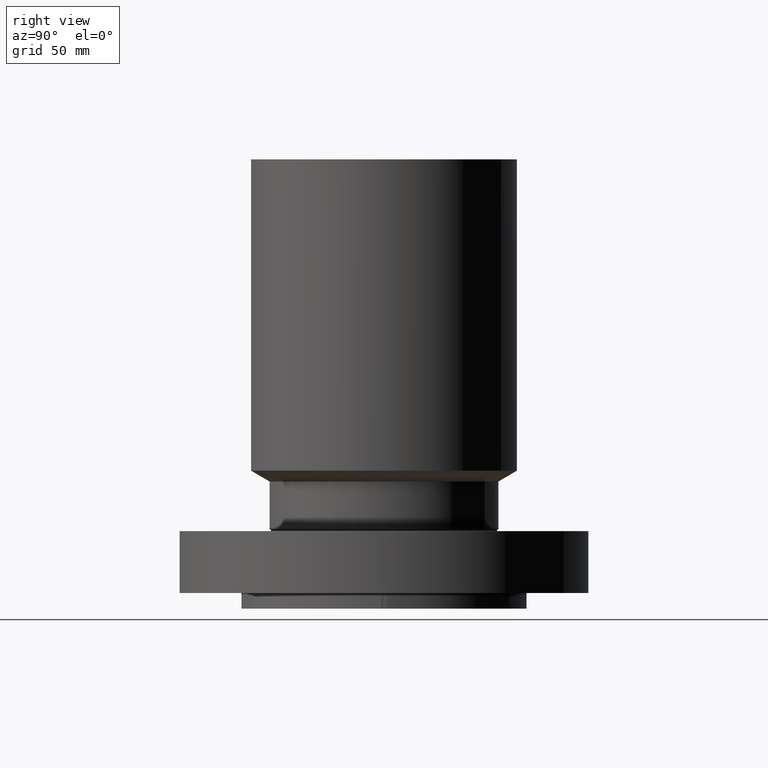
[diagram: clean part render]
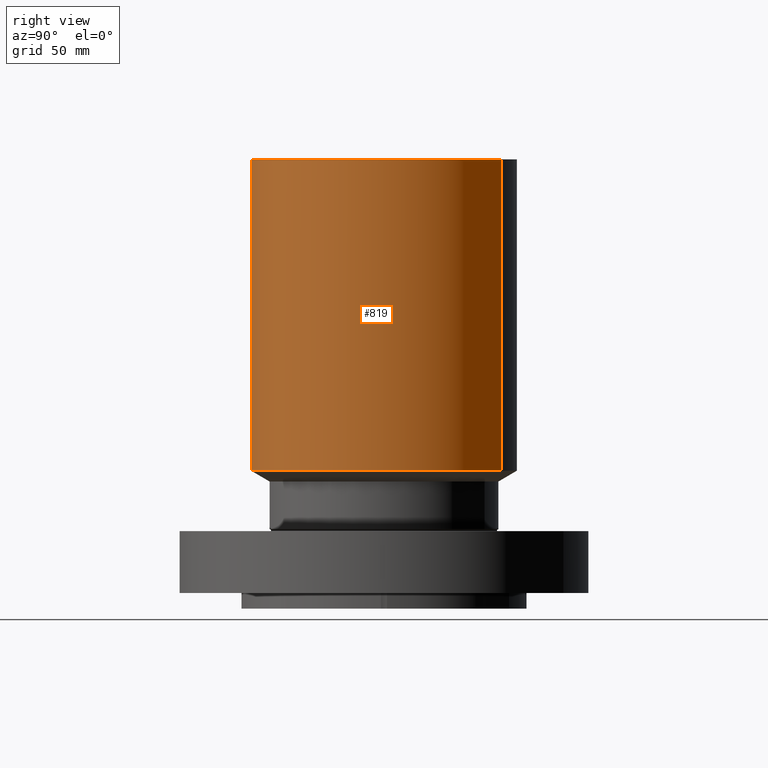
[diagram: same view with one face highlighted and labeled with its STEP entity id]
A machine part, right view. The second image highlights one B-rep face of the part: STEP entity #819.
In plain terms, the highlighted cylindrical surface (partial cylindrical patch) has radius 68.326 mm, axis along (0, 0, -1).
Its self-contained STEP definition (entity closure, byte-faithful):
#760=AXIS2_PLACEMENT_3D('Circle Axis2P3D',#758,#759,$) ;
#792=AXIS2_PLACEMENT_3D('Cylinder Axis2P3D',#789,#790,#791) ;
#803=AXIS2_PLACEMENT_3D('Circle Axis2P3D',#801,#802,$) ;
#755=CARTESIAN_POINT('Vertex',(1.28965469885,2.36069709149,2.4693931023)) ;
#758=CARTESIAN_POINT('Axis2P3D Location',(0.,0.,2.4693931023)) ;
#762=CARTESIAN_POINT('Vertex',(-1.28965469885,-2.36069709149,2.4693931023)) ;
#789=CARTESIAN_POINT('Axis2P3D Location',(0.,0.,4.21850000002)) ;
#794=CARTESIAN_POINT('Line Origine',(1.28965469885,2.36069709149,5.60969655117)) ;
#798=CARTESIAN_POINT('Vertex',(1.28965469885,2.36069709149,8.75000000003)) ;
#801=CARTESIAN_POINT('Axis2P3D Location',(0.,0.,8.75000000003)) ;
#805=CARTESIAN_POINT('Vertex',(-1.28965469885,-2.36069709149,8.75000000003)) ;
#808=CARTESIAN_POINT('Line Origine',(-1.28965469885,-2.36069709149,5.60969655117)) ;
#759=DIRECTION('Axis2P3D Direction',(-0.,0.,0.0393700787402)) ;
#790=DIRECTION('Axis2P3D Direction',(0.,0.,-0.0393700787402)) ;
#791=DIRECTION('Axis2P3D XDirection',(-0.0188750212049,-0.0345504945626,0.)) ;
#795=DIRECTION('Vector Direction',(0.,0.,-0.0393700787402)) ;
#802=DIRECTION('Axis2P3D Direction',(0.,0.,-0.0393700787402)) ;
#809=DIRECTION('Vector Direction',(0.,0.,-0.0393700787402)) ;
#796=VECTOR('Line Direction',#795,0.0393700787402) ;
#810=VECTOR('Line Direction',#809,0.0393700787402) ;
#814=ORIENTED_EDGE('',*,*,#764,.F.) ;
#815=ORIENTED_EDGE('',*,*,#800,.T.) ;
#816=ORIENTED_EDGE('',*,*,#807,.T.) ;
#817=ORIENTED_EDGE('',*,*,#812,.F.) ;
#819=ADVANCED_FACE('PartBody',(#818),#793,.T.) ;
#761=CIRCLE('generated circle',#760,2.69000000001) ;
#804=CIRCLE('generated circle',#803,2.69000000001) ;
#793=CYLINDRICAL_SURFACE('generated cylinder',#792,2.69000000001) ;
#764=EDGE_CURVE('',#756,#763,#761,.F.) ;
#800=EDGE_CURVE('',#756,#799,#797,.F.) ;
#807=EDGE_CURVE('',#799,#806,#804,.T.) ;
#812=EDGE_CURVE('',#763,#806,#811,.F.) ;
#813=EDGE_LOOP('',(#814,#815,#816,#817)) ;
#818=FACE_OUTER_BOUND('',#813,.T.) ;
#797=LINE('Line',#794,#796) ;
#811=LINE('Line',#808,#810) ;
#756=VERTEX_POINT('',#755) ;
#763=VERTEX_POINT('',#762) ;
#799=VERTEX_POINT('',#798) ;
#806=VERTEX_POINT('',#805) ;